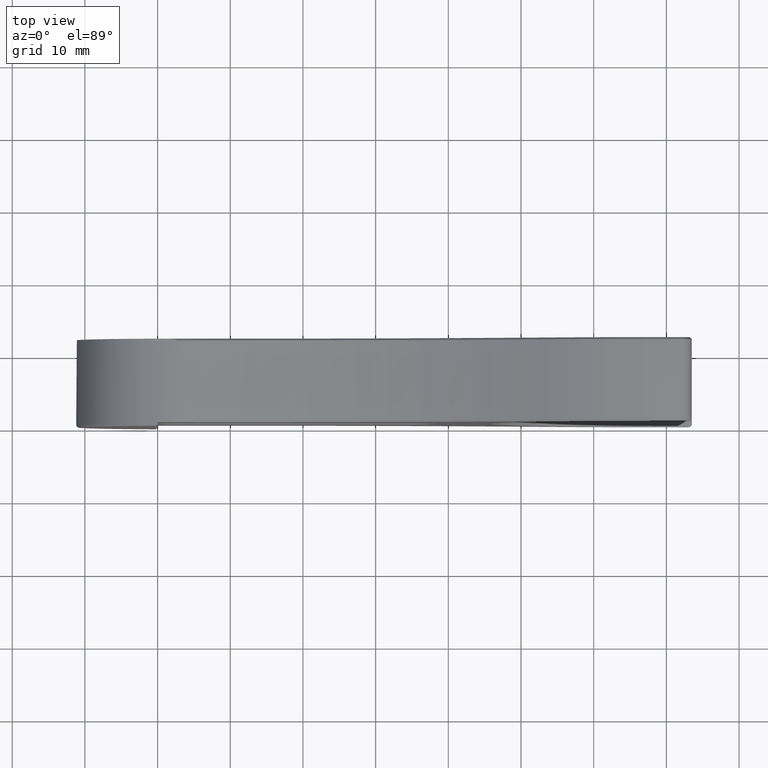
[diagram: clean part render]
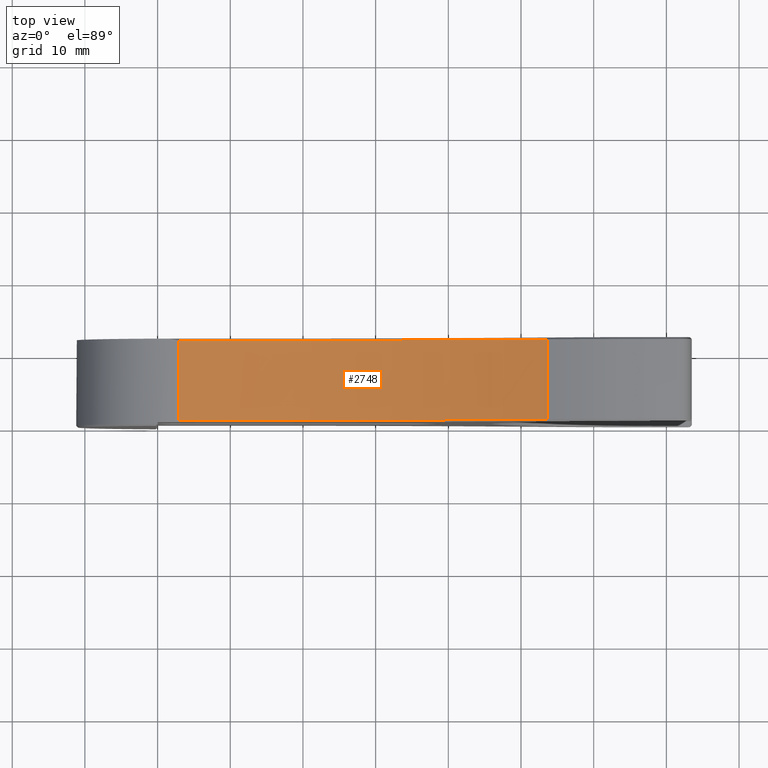
[diagram: same view with one face highlighted and labeled with its STEP entity id]
A machine part, top view. The second image highlights one B-rep face of the part: STEP entity #2748.
In plain terms, the highlighted cylindrical surface (partial cylindrical patch) has radius 97 mm, axis along (-0, 1, -0).
Its self-contained STEP definition (entity closure, byte-faithful):
#37 = VECTOR ( 'NONE', #2816, 1000.000000000000000 ) ;
#244 = AXIS2_PLACEMENT_3D ( 'NONE', #1498, #1284, #1800 ) ;
#253 = CARTESIAN_POINT ( 'NONE',  ( -16.35178773790837781, 11.75000000000002842, 23.19265531614720999 ) ) ;
#291 = CARTESIAN_POINT ( 'NONE',  ( -16.35178773790837781, 0.000000000000000000, 23.19265531614720999 ) ) ;
#304 = LINE ( 'NONE', #2849, #37 ) ;
#354 = CARTESIAN_POINT ( 'NONE',  ( -57.51245661154021604, 0.000000000000000000, 111.0265857637551790 ) ) ;
#594 = CARTESIAN_POINT ( 'NONE',  ( -16.35178773790837781, 0.7499999999999933387, 23.19265531614720999 ) ) ;
#608 = CIRCLE ( 'NONE', #1145, 97.00000000000000000 ) ;
#763 = DIRECTION ( 'NONE',  ( 0.000000000000000000, -1.000000000000000000, 0.000000000000000000 ) ) ;
#824 = CARTESIAN_POINT ( 'NONE',  ( -57.51245661154021604, 0.7499999999999933387, 111.0265857637551790 ) ) ;
#855 = DIRECTION ( 'NONE',  ( -0.000000000000000000, 1.000000000000000000, -0.000000000000000000 ) ) ;
#897 = VERTEX_POINT ( 'NONE', #1699 ) ;
#941 = VERTEX_POINT ( 'NONE', #253 ) ;
#991 = VECTOR ( 'NONE', #855, 1000.000000000000000 ) ;
#1021 = AXIS2_PLACEMENT_3D ( 'NONE', #824, #1874, #2025 ) ;
#1091 = VERTEX_POINT ( 'NONE', #594 ) ;
#1094 = DIRECTION ( 'NONE',  ( 0.000000000000000000, 0.000000000000000000, -1.000000000000000000 ) ) ;
#1145 = AXIS2_PLACEMENT_3D ( 'NONE', #2361, #763, #1094 ) ;
#1245 = VERTEX_POINT ( 'NONE', #1744 ) ;
#1247 = VERTEX_POINT ( 'NONE', #3256 ) ;
#1284 = DIRECTION ( 'NONE',  ( 0.000000000000000000, 1.000000000000000000, 0.000000000000000000 ) ) ;
#1498 = CARTESIAN_POINT ( 'NONE',  ( -57.51245661154021604, 11.75000000000002842, 111.0265857637551790 ) ) ;
#1696 = CIRCLE ( 'NONE', #244, 97.00000000000000000 ) ;
#1699 = CARTESIAN_POINT ( 'NONE',  ( -57.51245661154021604, 0.7499999999999933387, 14.02658576375517896 ) ) ;
#1744 = CARTESIAN_POINT ( 'NONE',  ( -67.04315519673122026, 0.7499999999999933387, 14.49593889718622819 ) ) ;
#1748 = EDGE_LOOP ( 'NONE', ( #3032, #2923, #3213, #2466, #2276 ) ) ;
#1800 = DIRECTION ( 'NONE',  ( 0.000000000000000000, 0.000000000000000000, 1.000000000000000000 ) ) ;
#1874 = DIRECTION ( 'NONE',  ( 0.000000000000000000, -1.000000000000000000, 0.000000000000000000 ) ) ;
#1900 = DIRECTION ( 'NONE',  ( 0.000000000000000000, 0.000000000000000000, 1.000000000000000000 ) ) ;
#1931 = FACE_OUTER_BOUND ( 'NONE', #1748, .T. ) ;
#2025 = DIRECTION ( 'NONE',  ( 0.000000000000000000, 0.000000000000000000, -1.000000000000000000 ) ) ;
#2189 = CIRCLE ( 'NONE', #1021, 97.00000000000000000 ) ;
#2259 = EDGE_CURVE ( 'NONE', #1091, #941, #2586, .T. ) ;
#2276 = ORIENTED_EDGE ( 'NONE', *, *, #2566, .T. ) ;
#2361 = CARTESIAN_POINT ( 'NONE',  ( -57.51245661154021604, 0.7499999999999933387, 111.0265857637551790 ) ) ;
#2402 = DIRECTION ( 'NONE',  ( -0.000000000000000000, 1.000000000000000000, -0.000000000000000000 ) ) ;
#2466 = ORIENTED_EDGE ( 'NONE', *, *, #2259, .T. ) ;
#2566 = EDGE_CURVE ( 'NONE', #941, #1247, #1696, .T. ) ;
#2586 = LINE ( 'NONE', #291, #991 ) ;
#2667 = EDGE_CURVE ( 'NONE', #1245, #1247, #304, .T. ) ;
#2748 = ADVANCED_FACE ( 'NONE', ( #1931 ), #3211, .F. ) ;
#2816 = DIRECTION ( 'NONE',  ( -0.000000000000000000, 1.000000000000000000, -0.000000000000000000 ) ) ;
#2849 = CARTESIAN_POINT ( 'NONE',  ( -67.04315519673122026, 0.000000000000000000, 14.49593889718622819 ) ) ;
#2923 = ORIENTED_EDGE ( 'NONE', *, *, #3048, .T. ) ;
#3032 = ORIENTED_EDGE ( 'NONE', *, *, #2667, .F. ) ;
#3048 = EDGE_CURVE ( 'NONE', #1245, #897, #2189, .T. ) ;
#3057 = EDGE_CURVE ( 'NONE', #897, #1091, #608, .T. ) ;
#3146 = AXIS2_PLACEMENT_3D ( 'NONE', #354, #2402, #1900 ) ;
#3211 = CYLINDRICAL_SURFACE ( 'NONE', #3146, 97.00000000000000000 ) ;
#3213 = ORIENTED_EDGE ( 'NONE', *, *, #3057, .T. ) ;
#3256 = CARTESIAN_POINT ( 'NONE',  ( -67.04315519673122026, 11.75000000000002842, 14.49593889718622819 ) ) ;